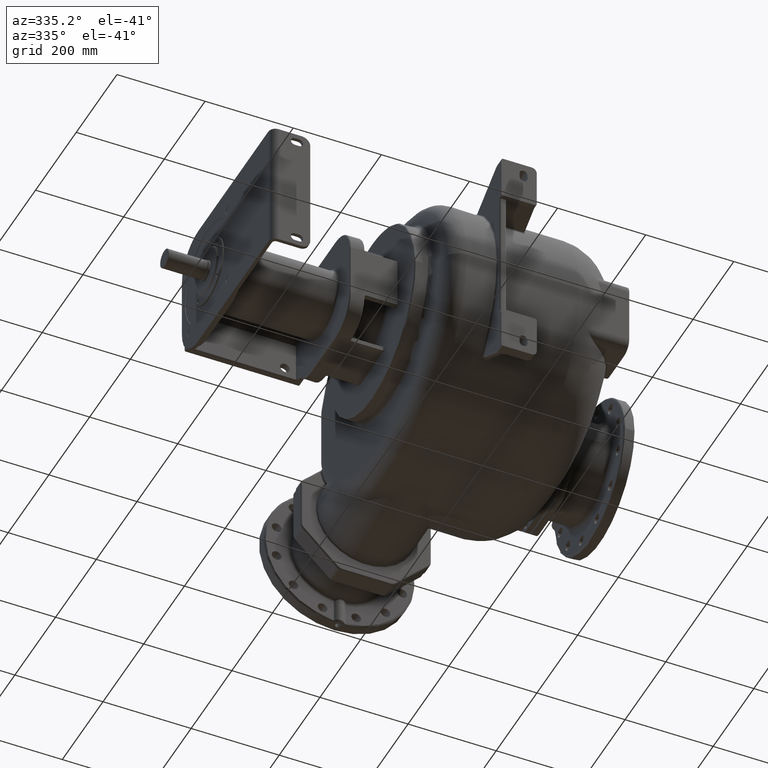
[diagram: clean part render]
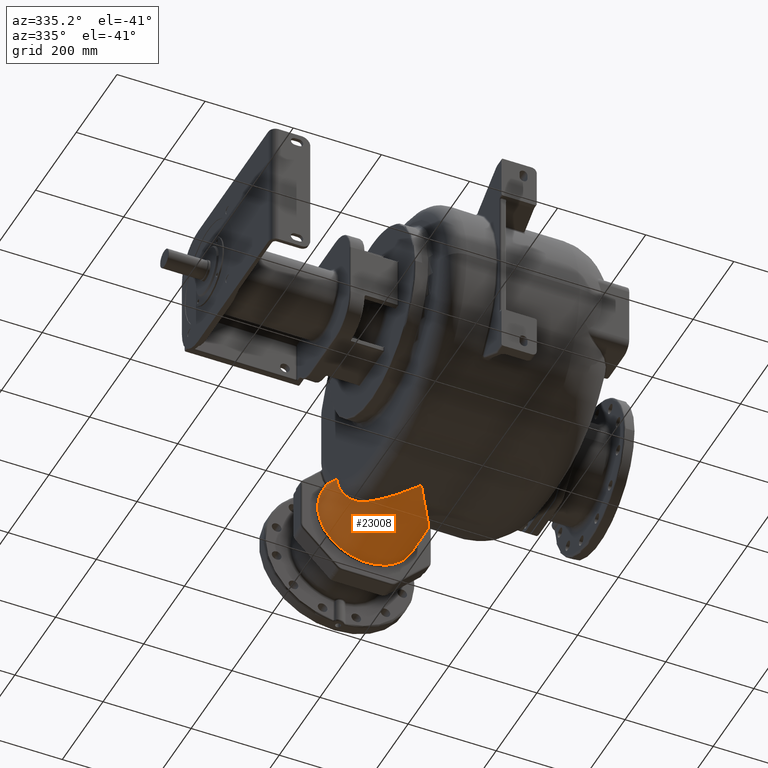
[diagram: same view with one face highlighted and labeled with its STEP entity id]
A machine part, auxiliary view. The second image highlights one B-rep face of the part: STEP entity #23008.
In plain terms, the highlighted cylindrical surface (partial cylindrical patch) has radius 112 mm, axis along (0, 1, 0).
Its self-contained STEP definition (entity closure, byte-faithful):
#1642=CARTESIAN_POINT('',(4.935057520458E1,6.61E2,-1.632944567138E2));
#1643=CARTESIAN_POINT('',(4.964078718439E1,6.607286686041E2,-1.638520622221E2));
#1644=CARTESIAN_POINT('',(5.021158725386E1,6.601758555522E2,-1.649717595625E2));
#1645=CARTESIAN_POINT('',(5.104181989323E1,6.593294968364E2,-1.666704753374E2));
#1646=CARTESIAN_POINT('',(5.184301665347E1,6.584601784242E2,-1.683824999807E2));
#1647=CARTESIAN_POINT('',(5.261586363570E1,6.575688050053E2,-1.701092595525E2));
#1648=CARTESIAN_POINT('',(5.336002347568E1,6.566544842163E2,-1.718502419336E2));
#1649=CARTESIAN_POINT('',(5.407543470834E1,6.557168774528E2,-1.736055199087E2));
#1650=CARTESIAN_POINT('',(5.476192820059E1,6.547554741740E2,-1.753749962830E2));
#1651=CARTESIAN_POINT('',(5.541932794222E1,6.537697745949E2,-1.771585983188E2));
#1652=CARTESIAN_POINT('',(5.604736776078E1,6.527593382165E2,-1.789560513063E2));
#1653=CARTESIAN_POINT('',(5.664577036397E1,6.517237074255E2,-1.807670566131E2));
#1654=CARTESIAN_POINT('',(5.721424199455E1,6.506624175837E2,-1.825912750970E2));
#1655=CARTESIAN_POINT('',(5.775249383543E1,6.495749402063E2,-1.844283761303E2));
#1656=CARTESIAN_POINT('',(5.826037742679E1,6.484605682164E2,-1.862785670101E2));
#1657=CARTESIAN_POINT('',(5.873768384008E1,6.473186342219E2,-1.881419848206E2));
#1658=CARTESIAN_POINT('',(5.918418620543E1,6.461483565379E2,-1.900188486046E2));
#1659=CARTESIAN_POINT('',(5.959949891438E1,6.449492385515E2,-1.919088425010E2));
#1660=CARTESIAN_POINT('',(5.998308437911E1,6.437212516699E2,-1.938108737614E2));
#1661=CARTESIAN_POINT('',(6.033444932574E1,6.424644190531E2,-1.957237665022E2));
#1662=CARTESIAN_POINT('',(6.065332135171E1,6.411780715725E2,-1.976473805639E2));
#1663=CARTESIAN_POINT('',(6.093948227913E1,6.398610678233E2,-1.995821335885E2));
#1664=CARTESIAN_POINT('',(6.119264849618E1,6.385123896198E2,-2.015284112187E2));
#1665=CARTESIAN_POINT('',(6.141245087450E1,6.371312347161E2,-2.034863164377E2));
#1666=CARTESIAN_POINT('',(6.159848204237E1,6.357167317991E2,-2.054559407792E2));
#1667=CARTESIAN_POINT('',(6.175026687455E1,6.342682331677E2,-2.074369912077E2));
#1668=CARTESIAN_POINT('',(6.186728036027E1,6.327856442907E2,-2.094283745584E2));
#1669=CARTESIAN_POINT('',(6.194904578153E1,6.312688927124E2,-2.114289619157E2));
#1670=CARTESIAN_POINT('',(6.199514326388E1,6.297175144633E2,-2.134381220175E2));
#1671=CARTESIAN_POINT('',(6.200515654861E1,6.281303887401E2,-2.154559847977E2));
#1672=CARTESIAN_POINT('',(6.197862595278E1,6.265064967756E2,-2.174824853941E2));
#1673=CARTESIAN_POINT('',(6.191505179923E1,6.248448187831E2,-2.195177489544E2));
#1674=CARTESIAN_POINT('',(6.181389206398E1,6.231443387611E2,-2.215617876074E2));
#1675=CARTESIAN_POINT('',(6.167455866333E1,6.214039715209E2,-2.236146154708E2));
#1676=CARTESIAN_POINT('',(6.149650361709E1,6.196233318296E2,-2.256753526190E2));
#1677=CARTESIAN_POINT('',(6.127921545086E1,6.178021156488E2,-2.277430034803E2));
#1678=CARTESIAN_POINT('',(6.102222044535E1,6.159400533258E2,-2.298165104576E2));
#1679=CARTESIAN_POINT('',(6.072499850670E1,6.140363847263E2,-2.318953292097E2));
#1680=CARTESIAN_POINT('',(6.038702219886E1,6.120902875612E2,-2.339788863687E2));
#1681=CARTESIAN_POINT('',(6.000775603086E1,6.101009484499E2,-2.360666233304E2));
#1682=CARTESIAN_POINT('',(5.958655561381E1,6.080672276408E2,-2.381584391727E2));
#1683=CARTESIAN_POINT('',(5.912273964587E1,6.059879451296E2,-2.402541633173E2));
#1684=CARTESIAN_POINT('',(5.861562981006E1,6.038620622332E2,-2.423534104538E2));
#1685=CARTESIAN_POINT('',(5.806468643337E1,6.016891240657E2,-2.444551632940E2));
#1686=CARTESIAN_POINT('',(5.746938108018E1,5.994686262313E2,-2.465584270081E2));
#1687=CARTESIAN_POINT('',(5.682921431766E1,5.972000861780E2,-2.486621503529E2));
#1688=CARTESIAN_POINT('',(5.614367671453E1,5.948829043330E2,-2.507653557678E2));
#1689=CARTESIAN_POINT('',(5.541230196432E1,5.925165247888E2,-2.528669621211E2));
#1690=CARTESIAN_POINT('',(5.463460784206E1,5.901003178978E2,-2.549659745294E2));
#1691=CARTESIAN_POINT('',(5.380997333485E1,5.876333583220E2,-2.570617484139E2));
#1692=CARTESIAN_POINT('',(5.293778823977E1,5.851147553162E2,-2.591535354279E2));
#1693=CARTESIAN_POINT('',(5.201747018584E1,5.825437084714E2,-2.612404686939E2));
#1694=CARTESIAN_POINT('',(5.104850636703E1,5.799195883678E2,-2.633214983286E2));
#1695=CARTESIAN_POINT('',(5.003038753722E1,5.772417349015E2,-2.653955603784E2));
#1696=CARTESIAN_POINT('',(4.896267431590E1,5.745096202224E2,-2.674614456278E2));
#1697=CARTESIAN_POINT('',(4.784501996833E1,5.717228807068E2,-2.695177912364E2));
#1698=CARTESIAN_POINT('',(4.667711583045E1,5.688811364310E2,-2.715632044445E2));
#1699=CARTESIAN_POINT('',(4.545870201101E1,5.659840913956E2,-2.735962498599E2));
#1700=CARTESIAN_POINT('',(4.418948965436E1,5.630314479023E2,-2.756155754532E2));
#1701=CARTESIAN_POINT('',(4.286923922846E1,5.600229551403E2,-2.776197756756E2));
#1702=CARTESIAN_POINT('',(4.149765346600E1,5.569581876808E2,-2.796075518525E2));
#1703=CARTESIAN_POINT('',(4.007445426119E1,5.538367189866E2,-2.815775781250E2));
#1704=CARTESIAN_POINT('',(3.859939859196E1,5.506581465400E2,-2.835284842943E2));
#1705=CARTESIAN_POINT('',(3.707229876814E1,5.474221310080E2,-2.854588303744E2));
#1706=CARTESIAN_POINT('',(3.549325907184E1,5.441288500321E2,-2.873668412303E2));
#1707=CARTESIAN_POINT('',(3.386239420228E1,5.407784499056E2,-2.892507977243E2));
#1708=CARTESIAN_POINT('',(3.217978455644E1,5.373710341539E2,-2.911090681727E2));
#1709=CARTESIAN_POINT('',(3.044558600757E1,5.339067841620E2,-2.929399770615E2));
#1710=CARTESIAN_POINT('',(2.866002177581E1,5.303859524449E2,-2.947418232636E2));
#1711=CARTESIAN_POINT('',(2.682335453980E1,5.268087932479E2,-2.965129109193E2));
#1712=CARTESIAN_POINT('',(2.493595486890E1,5.231756908985E2,-2.982514857551E2));
#1713=CARTESIAN_POINT('',(2.299833424303E1,5.194871962750E2,-2.999557237760E2));
#1714=CARTESIAN_POINT('',(2.101094089280E1,5.157437628158E2,-3.016239147559E2));
#1715=CARTESIAN_POINT('',(1.897437496703E1,5.119460756476E2,-3.032542693909E2));
#1716=CARTESIAN_POINT('',(1.688939096630E1,5.080950283855E2,-3.048449418258E2));
#1717=CARTESIAN_POINT('',(1.475678030340E1,5.041915023354E2,-3.063941294481E2));
#1718=CARTESIAN_POINT('',(1.257743915412E1,5.002364650392E2,-3.079000243462E2));
#1719=CARTESIAN_POINT('',(1.035224954407E1,4.962308371759E2,-3.093608976342E2));
#1720=CARTESIAN_POINT('',(8.082213228995E0,4.921757332480E2,-3.107750054449E2));
#1721=CARTESIAN_POINT('',(5.768450262973E0,4.880723968566E2,-3.121406026928E2));
#1722=CARTESIAN_POINT('',(3.412254559175E0,4.839223008289E2,-3.134559206415E2));
#1723=CARTESIAN_POINT('',(1.015247049936E0,4.797274013084E2,-3.147191111608E2));
#1724=CARTESIAN_POINT('',(-1.421069396101E0,4.754894403538E2,
-3.159285035510E2));
#1725=CARTESIAN_POINT('',(-3.895357421122E0,4.712098047108E2,
-3.170825920467E2));
#1726=CARTESIAN_POINT('',(-6.406183468927E0,4.668899806766E2,
-3.181798950880E2));
#1727=CARTESIAN_POINT('',(-8.952119387962E0,4.625313812707E2,
-3.192190028576E2));
#1728=CARTESIAN_POINT('',(-1.153150644046E1,4.581358160524E2,
-3.201984816788E2));
#1729=CARTESIAN_POINT('',(-1.414241406122E1,4.537054939547E2,
-3.211168904397E2));
#1730=CARTESIAN_POINT('',(-1.678290558198E1,4.492425602730E2,
-3.219728934133E2));
#1731=CARTESIAN_POINT('',(-1.945100360962E1,4.447492041912E2,
-3.227652423772E2));
#1732=CARTESIAN_POINT('',(-2.214466016660E1,4.402277032795E2,
-3.234927693979E2));
#1733=CARTESIAN_POINT('',(-2.486179042777E1,4.356803345683E2,
-3.241543985122E2));
#1734=CARTESIAN_POINT('',(-2.760026029978E1,4.311094336504E2,
-3.247491420369E2));
#1735=CARTESIAN_POINT('',(-3.035782202183E1,4.265175029988E2,
-3.252760917714E2));
#1736=CARTESIAN_POINT('',(-3.313221016763E1,4.219070267816E2,
-3.257344443668E2));
#1737=CARTESIAN_POINT('',(-3.592111554651E1,4.172805502029E2,
-3.261234955507E2));
#1738=CARTESIAN_POINT('',(-3.872218924079E1,4.126406580560E2,
-3.264426438236E2));
#1739=CARTESIAN_POINT('',(-4.153306013078E1,4.079899502629E2,
-3.266913920811E2));
#1740=CARTESIAN_POINT('',(-4.435123402432E1,4.033312211393E2,
-3.268693471009E2));
#1741=CARTESIAN_POINT('',(-4.717438870619E1,3.986669629178E2,
-3.269762333127E2));
#1742=CARTESIAN_POINT('',(-4.905794385153E1,3.955559611368E2,
-3.269999986423E2));
#1743=CARTESIAN_POINT('',(-5.E1,3.94E2,-3.27E2));
#1745=CARTESIAN_POINT('',(-1.62E2,5.670895721874E2,-2.15E2));
#1746=CARTESIAN_POINT('',(-1.620000024725E2,5.684595082387E2,
-2.143182103054E2));
#1747=CARTESIAN_POINT('',(-1.619875440128E2,5.711653601307E2,
-2.129527960979E2));
#1748=CARTESIAN_POINT('',(-1.619312680864E2,5.751232007292E2,
-2.109016842099E2));
#1749=CARTESIAN_POINT('',(-1.618373293461E2,5.789805304843E2,
-2.088504198040E2));
#1750=CARTESIAN_POINT('',(-1.617058257796E2,5.827379597330E2,
-2.068017057906E2));
#1751=CARTESIAN_POINT('',(-1.615370141196E2,5.863957902337E2,
-2.047582623928E2));
#1752=CARTESIAN_POINT('',(-1.613313081836E2,5.899544017247E2,
-2.027227439283E2));
#1753=CARTESIAN_POINT('',(-1.610892664279E2,5.934143827202E2,
-2.006976838557E2));
#1754=CARTESIAN_POINT('',(-1.608115452886E2,5.967766811813E2,
-1.986852518479E2));
#1755=CARTESIAN_POINT('',(-1.604989093680E2,6.000422205573E2,
-1.966875236081E2));
#1756=CARTESIAN_POINT('',(-1.601522425704E2,6.032119138942E2,
-1.947065617791E2));
#1757=CARTESIAN_POINT('',(-1.597724710559E2,6.062873016084E2,
-1.927440342425E2));
#1758=CARTESIAN_POINT('',(-1.593605369409E2,6.092701319918E2,
-1.908012673015E2));
#1759=CARTESIAN_POINT('',(-1.589174301393E2,6.121620216659E2,
-1.888795001630E2));
#1760=CARTESIAN_POINT('',(-1.584441829185E2,6.149646841726E2,
-1.869798841789E2));
#1761=CARTESIAN_POINT('',(-1.579418623816E2,6.176799182721E2,
-1.851034794400E2));
#1762=CARTESIAN_POINT('',(-1.574115568130E2,6.203095386913E2,
-1.832512295341E2));
#1763=CARTESIAN_POINT('',(-1.568543522853E2,6.228551943531E2,
-1.814239173590E2));
#1764=CARTESIAN_POINT('',(-1.562713507969E2,6.253186346433E2,
-1.796222596430E2));
#1765=CARTESIAN_POINT('',(-1.556636742041E2,6.277016180265E2,
-1.778469289532E2));
#1766=CARTESIAN_POINT('',(-1.550324557900E2,6.300059685259E2,
-1.760985353329E2));
#1767=CARTESIAN_POINT('',(-1.543787971889E2,6.322333185281E2,
-1.743775269045E2));
#1768=CARTESIAN_POINT('',(-1.537037931460E2,6.343853630880E2,
-1.726842853641E2));
#1769=CARTESIAN_POINT('',(-1.530085572331E2,6.364637761890E2,
-1.710191948913E2));
#1770=CARTESIAN_POINT('',(-1.522942003680E2,6.384703179333E2,
-1.693825877568E2));
#1771=CARTESIAN_POINT('',(-1.515617861637E2,6.404065733267E2,
-1.677746565298E2));
#1772=CARTESIAN_POINT('',(-1.508123600528E2,6.422741396411E2,
-1.661955394412E2));
#1773=CARTESIAN_POINT('',(-1.500469683663E2,6.440746364317E2,
-1.646453642405E2));
#1774=CARTESIAN_POINT('',(-1.492666372907E2,6.458097752495E2,
-1.631242055033E2));
#1775=CARTESIAN_POINT('',(-1.484723258682E2,6.474811187949E2,
-1.616320064219E2));
#1776=CARTESIAN_POINT('',(-1.476650039189E2,6.490901387022E2,
-1.601687386954E2));
#1777=CARTESIAN_POINT('',(-1.468456624261E2,6.506382946334E2,
-1.587344109066E2));
#1778=CARTESIAN_POINT('',(-1.460152558698E2,6.521271497548E2,
-1.573289642986E2));
#1779=CARTESIAN_POINT('',(-1.451746838097E2,6.535580985149E2,
-1.559522529094E2));
#1780=CARTESIAN_POINT('',(-1.443248255449E2,6.549325259424E2,
-1.546041097204E2));
#1781=CARTESIAN_POINT('',(-1.434665308946E2,6.562519036486E2,
-1.532843317498E2));
#1782=CARTESIAN_POINT('',(-1.426005784452E2,6.575177128127E2,
-1.519926282995E2));
#1783=CARTESIAN_POINT('',(-1.417277900712E2,6.587314331845E2,
-1.507287804621E2));
#1784=CARTESIAN_POINT('',(-1.408485507292E2,6.598939650343E2,
-1.494920011664E2));
#1785=CARTESIAN_POINT('',(-1.402592909472E2,6.606370476933E2,
-1.486862969938E2));
#1786=CARTESIAN_POINT('',(-1.399637734645E2,6.61E2,-1.482877862455E2));
#1788=CARTESIAN_POINT('',(-1.175862068965E2,5.093840707694E2,
-3.043090400650E2));
#1789=CARTESIAN_POINT('',(-1.179140322442E2,5.099886647183E2,
-3.040609514085E2));
#1790=CARTESIAN_POINT('',(-1.185713211021E2,5.111842072955E2,
-3.035578587305E2));
#1791=CARTESIAN_POINT('',(-1.195609722050E2,5.129368989869E2,
-3.027827107078E2));
#1792=CARTESIAN_POINT('',(-1.205537034113E2,5.146501184249E2,
-3.019869008568E2));
#1793=CARTESIAN_POINT('',(-1.215488235124E2,5.163247692755E2,
-3.011703230633E2));
#1794=CARTESIAN_POINT('',(-1.225457673847E2,5.179617902177E2,
-3.003327787228E2));
#1795=CARTESIAN_POINT('',(-1.235439016166E2,5.195620334627E2,
-2.994741303847E2));
#1796=CARTESIAN_POINT('',(-1.245425559155E2,5.211264740950E2,
-2.985942827406E2));
#1797=CARTESIAN_POINT('',(-1.255410306082E2,5.226558520904E2,
-2.976931788901E2));
#1798=CARTESIAN_POINT('',(-1.265385562991E2,5.241507129465E2,
-2.967708426962E2));
#1799=CARTESIAN_POINT('',(-1.275344818356E2,5.256116793252E2,
-2.958272090417E2));
#1800=CARTESIAN_POINT('',(-1.285284245521E2,5.270396968832E2,
-2.948619602987E2));
#1801=CARTESIAN_POINT('',(-1.295199408698E2,5.284358623820E2,
-2.938748238476E2));
#1802=CARTESIAN_POINT('',(-1.305083532432E2,5.298007963792E2,
-2.928657575324E2));
#1803=CARTESIAN_POINT('',(-1.314926189916E2,5.311345455515E2,
-2.918351205502E2));
#1804=CARTESIAN_POINT('',(-1.324717300781E2,5.324371583389E2,
-2.907832943912E2));
#1805=CARTESIAN_POINT('',(-1.334451992718E2,5.337093221243E2,
-2.897101356088E2));
#1806=CARTESIAN_POINT('',(-1.344128182121E2,5.349519676608E2,
-2.886151752401E2));
#1807=CARTESIAN_POINT('',(-1.353743003605E2,5.361661631388E2,
-2.874979948225E2));
#1808=CARTESIAN_POINT('',(-1.363289780496E2,5.373524317417E2,
-2.863586018595E2));
#1809=CARTESIAN_POINT('',(-1.372758523605E2,5.385108176036E2,
-2.851974327099E2));
#1810=CARTESIAN_POINT('',(-1.382139975463E2,5.396414176444E2,
-2.840148938970E2));
#1811=CARTESIAN_POINT('',(-1.391426731452E2,5.407445037183E2,
-2.828112071453E2));
#1812=CARTESIAN_POINT('',(-1.400615116167E2,5.418207391771E2,
-2.815861211533E2));
#1813=CARTESIAN_POINT('',(-1.409700981691E2,5.428706305558E2,
-2.803394246650E2));
#1814=CARTESIAN_POINT('',(-1.418680119231E2,5.438948720517E2,
-2.790708933798E2));
#1815=CARTESIAN_POINT('',(-1.427544818087E2,5.448937657161E2,
-2.777807968608E2));
#1816=CARTESIAN_POINT('',(-1.436286764769E2,5.458674888375E2,
-2.764695391152E2));
#1817=CARTESIAN_POINT('',(-1.444898065120E2,5.468162321650E2,
-2.751375114167E2));
#1818=CARTESIAN_POINT('',(-1.453371276534E2,5.477401956610E2,
-2.737850855830E2));
#1819=CARTESIAN_POINT('',(-1.461701014909E2,5.486397693006E2,
-2.724123347054E2));
#1820=CARTESIAN_POINT('',(-1.469881522143E2,5.495152363600E2,
-2.710194019909E2));
#1821=CARTESIAN_POINT('',(-1.477908607234E2,5.503671133842E2,
-2.696061682914E2));
#1822=CARTESIAN_POINT('',(-1.485779840474E2,5.511961822211E2,
-2.681721651985E2));
#1823=CARTESIAN_POINT('',(-1.493493187943E2,5.520031958098E2,
-2.667167613394E2));
#1824=CARTESIAN_POINT('',(-1.501040896814E2,5.527882815077E2,
-2.652403566217E2));
#1825=CARTESIAN_POINT('',(-1.508412689044E2,5.535512811836E2,
-2.637439346318E2));
#1826=CARTESIAN_POINT('',(-1.515599093896E2,5.542921046985E2,
-2.622284616162E2));
#1827=CARTESIAN_POINT('',(-1.522595394149E2,5.550111126766E2,
-2.606939808843E2));
#1828=CARTESIAN_POINT('',(-1.529397169500E2,5.557087735111E2,
-2.591404444634E2));
#1829=CARTESIAN_POINT('',(-1.535999892737E2,5.563855453486E2,
-2.575677982180E2));
#1830=CARTESIAN_POINT('',(-1.542397658046E2,5.570417172876E2,
-2.559763027799E2));
#1831=CARTESIAN_POINT('',(-1.548584372007E2,5.576775402677E2,
-2.543662950587E2));
#1832=CARTESIAN_POINT('',(-1.554554114443E2,5.582932632783E2,
-2.527380978231E2));
#1833=CARTESIAN_POINT('',(-1.560300878011E2,5.588891035933E2,
-2.510920903195E2));
#1834=CARTESIAN_POINT('',(-1.565818701075E2,5.594653368717E2,
-2.494286795854E2));
#1835=CARTESIAN_POINT('',(-1.571101667962E2,5.600222302937E2,
-2.477483071293E2));
#1836=CARTESIAN_POINT('',(-1.576144421759E2,5.605600924412E2,
-2.460512773955E2));
#1837=CARTESIAN_POINT('',(-1.580941786698E2,5.610792390451E2,
-2.443378453647E2));
#1838=CARTESIAN_POINT('',(-1.585488525648E2,5.615799601755E2,
-2.426082958661E2));
#1839=CARTESIAN_POINT('',(-1.589779514918E2,5.620625901505E2,
-2.408628771034E2));
#1840=CARTESIAN_POINT('',(-1.593809640895E2,5.625274690015E2,
-2.391018292763E2));
#1841=CARTESIAN_POINT('',(-1.597573808806E2,5.629749308496E2,
-2.373253700631E2));
#1842=CARTESIAN_POINT('',(-1.601066520538E2,5.634052560119E2,
-2.355339025013E2));
#1843=CARTESIAN_POINT('',(-1.604281952769E2,5.638186753554E2,
-2.337280691944E2));
#1844=CARTESIAN_POINT('',(-1.607214554483E2,5.642154670708E2,
-2.319084864906E2));
#1845=CARTESIAN_POINT('',(-1.609859022008E2,5.645959244471E2,
-2.300757354914E2));
#1846=CARTESIAN_POINT('',(-1.612210367538E2,5.649603740396E2,
-2.282302681646E2));
#1847=CARTESIAN_POINT('',(-1.614263627382E2,5.653091379241E2,
-2.263725725510E2));
#1848=CARTESIAN_POINT('',(-1.616013881333E2,5.656425595336E2,
-2.245031854835E2));
#1849=CARTESIAN_POINT('',(-1.617456273276E2,5.659609761421E2,
-2.226227064172E2));
#1850=CARTESIAN_POINT('',(-1.618586083487E2,5.662647255999E2,
-2.207317630550E2));
#1851=CARTESIAN_POINT('',(-1.619398749401E2,5.665541662795E2,
-2.188309329837E2));
#1852=CARTESIAN_POINT('',(-1.619889913131E2,5.668297027322E2,
-2.169206666970E2));
#1853=CARTESIAN_POINT('',(-1.619999941655E2,5.670044030525E2,
-2.156411483800E2));
#1854=CARTESIAN_POINT('',(-1.62E2,5.670895725054E2,-2.149999996754E2));
#1856=CARTESIAN_POINT('',(-5.000000000543E1,3.94E2,-3.27E2));
#1857=CARTESIAN_POINT('',(-5.091875961337E1,3.955174807095E2,
-3.269999836146E2));
#1858=CARTESIAN_POINT('',(-5.275579128017E1,3.985516321229E2,
-3.269774013369E2));
#1859=CARTESIAN_POINT('',(-5.550944386334E1,4.031009979041E2,
-3.268757146949E2));
#1860=CARTESIAN_POINT('',(-5.825845480806E1,4.076452077702E2,
-3.267064232078E2));
#1861=CARTESIAN_POINT('',(-6.100070802664E1,4.121820052296E2,
-3.264697608521E2));
#1862=CARTESIAN_POINT('',(-6.373393246318E1,4.167088616455E2,
-3.261660799386E2));
#1863=CARTESIAN_POINT('',(-6.645591325383E1,4.212233502957E2,
-3.257958261113E2));
#1864=CARTESIAN_POINT('',(-6.916442290737E1,4.257230038501E2,
-3.253595482027E2));
#1865=CARTESIAN_POINT('',(-7.185730646381E1,4.302054437875E2,
-3.248578852300E2));
#1866=CARTESIAN_POINT('',(-7.453247280011E1,4.346683656296E2,
-3.242915614179E2));
#1867=CARTESIAN_POINT('',(-7.718787384890E1,4.391095396986E2,
-3.236613869535E2));
#1868=CARTESIAN_POINT('',(-7.982152288072E1,4.435267998167E2,
-3.229682510624E2));
#1869=CARTESIAN_POINT('',(-8.243146684984E1,4.479179879364E2,
-3.222131262152E2));
#1870=CARTESIAN_POINT('',(-8.501576980633E1,4.522809570995E2,
-3.213970740049E2));
#1871=CARTESIAN_POINT('',(-8.757251356751E1,4.566135653281E2,
-3.205212473088E2));
#1872=CARTESIAN_POINT('',(-9.009982850597E1,4.609136826445E2,
-3.195868838611E2));
#1873=CARTESIAN_POINT('',(-9.259612436977E1,4.651796214130E2,
-3.185952086353E2));
#1874=CARTESIAN_POINT('',(-9.505983384906E1,4.694097151136E2,
-3.175475126056E2));
#1875=CARTESIAN_POINT('',(-9.748944291033E1,4.736023127945E2,
-3.164451424936E2));
#1876=CARTESIAN_POINT('',(-9.988337602762E1,4.777556279900E2,
-3.152895566074E2));
#1877=CARTESIAN_POINT('',(-1.022400908728E2,4.818678874902E2,
-3.140822916592E2));
#1878=CARTESIAN_POINT('',(-1.045581131418E2,4.859373502698E2,
-3.128249483924E2));
#1879=CARTESIAN_POINT('',(-1.068363200129E2,4.899628723272E2,
-3.115190204997E2));
#1880=CARTESIAN_POINT('',(-1.090736359123E2,4.939433208416E2,
-3.101660344834E2));
#1881=CARTESIAN_POINT('',(-1.112690268421E2,4.978775947374E2,
-3.087675553860E2));
#1882=CARTESIAN_POINT('',(-1.134214815597E2,5.017645857697E2,
-3.073252025435E2));
#1883=CARTESIAN_POINT('',(-1.155301004021E2,5.056033181202E2,
-3.058405837053E2));
#1884=CARTESIAN_POINT('',(-1.169058529088E2,5.081293144324E2,
-3.048239099083E2));
#1885=CARTESIAN_POINT('',(-1.175862068965E2,5.093840707694E2,
-3.043090400650E2));
#1990=CARTESIAN_POINT('',(-5.E1,3.94E2,-3.27E2));
#2168=CARTESIAN_POINT('',(-1.62E2,5.670895725054E2,-2.149999996754E2));
#7071=CARTESIAN_POINT('',(-5.E1,6.61E2,-2.15E2));
#7072=DIRECTION('',(0.E0,-1.E0,0.E0));
#7073=DIRECTION('',(-8.032479773614E-1,0.E0,5.956447656656E-1));
#7074=AXIS2_PLACEMENT_3D('',#7071,#7072,#7073);
#20521=VERTEX_POINT('',#1990);
#20522=VERTEX_POINT('',#1642);
#20524=VERTEX_POINT('',#2168);
#20525=VERTEX_POINT('',#1788);
#20526=VERTEX_POINT('',#1786);
#22992=CARTESIAN_POINT('',(-5.E1,6.9E2,-2.15E2));
#22993=DIRECTION('',(0.E0,1.E0,0.E0));
#22994=DIRECTION('',(0.E0,0.E0,1.E0));
#22995=AXIS2_PLACEMENT_3D('',#22992,#22993,#22994);
#22996=CYLINDRICAL_SURFACE('',#22995,1.12E2);
#22998=ORIENTED_EDGE('',*,*,#22997,.F.);
#23000=ORIENTED_EDGE('',*,*,#22999,.F.);
#23001=ORIENTED_EDGE('',*,*,#22984,.F.);
#23003=ORIENTED_EDGE('',*,*,#23002,.F.);
#23005=ORIENTED_EDGE('',*,*,#23004,.F.);
#23006=EDGE_LOOP('',(#22998,#23000,#23001,#23003,#23005));
#23007=FACE_OUTER_BOUND('',#23006,.F.);
#23008=ADVANCED_FACE('',(#23007),#22996,.T.);
#1744=B_SPLINE_CURVE_WITH_KNOTS('',3,(#1642,#1643,#1644,#1645,#1646,#1647,#1648,
#1649,#1650,#1651,#1652,#1653,#1654,#1655,#1656,#1657,#1658,#1659,#1660,#1661,
#1662,#1663,#1664,#1665,#1666,#1667,#1668,#1669,#1670,#1671,#1672,#1673,#1674,
#1675,#1676,#1677,#1678,#1679,#1680,#1681,#1682,#1683,#1684,#1685,#1686,#1687,
#1688,#1689,#1690,#1691,#1692,#1693,#1694,#1695,#1696,#1697,#1698,#1699,#1700,
#1701,#1702,#1703,#1704,#1705,#1706,#1707,#1708,#1709,#1710,#1711,#1712,#1713,
#1714,#1715,#1716,#1717,#1718,#1719,#1720,#1721,#1722,#1723,#1724,#1725,#1726,
#1727,#1728,#1729,#1730,#1731,#1732,#1733,#1734,#1735,#1736,#1737,#1738,#1739,
#1740,#1741,#1742,#1743),.UNSPECIFIED.,.F.,.F.,(4,1,1,1,1,1,1,1,1,1,1,1,1,1,1,1,
1,1,1,1,1,1,1,1,1,1,1,1,1,1,1,1,1,1,1,1,1,1,1,1,1,1,1,1,1,1,1,1,1,1,1,1,1,1,1,1,
1,1,1,1,1,1,1,1,1,1,1,1,1,1,1,1,1,1,1,1,1,1,1,1,1,1,1,1,1,1,1,1,1,1,1,1,1,1,1,1,
1,1,1,4),(0.E0,1.010101010101E-2,2.020202020202E-2,3.030303030303E-2,
4.040404040404E-2,5.050505050505E-2,6.060606060606E-2,7.070707070707E-2,
8.080808080808E-2,9.090909090909E-2,1.010101010101E-1,1.111111111111E-1,
1.212121212121E-1,1.313131313131E-1,1.414141414141E-1,1.515151515152E-1,
1.616161616162E-1,1.717171717172E-1,1.818181818182E-1,1.919191919192E-1,
2.020202020202E-1,2.121212121212E-1,2.222222222222E-1,2.323232323232E-1,
2.424242424242E-1,2.525252525253E-1,2.626262626263E-1,2.727272727273E-1,
2.828282828283E-1,2.929292929293E-1,3.030303030303E-1,3.131313131313E-1,
3.232323232323E-1,3.333333333333E-1,3.434343434343E-1,3.535353535354E-1,
3.636363636364E-1,3.737373737374E-1,3.838383838384E-1,3.939393939394E-1,
4.040404040404E-1,4.141414141414E-1,4.242424242424E-1,4.343434343434E-1,
4.444444444444E-1,4.545454545455E-1,4.646464646465E-1,4.747474747475E-1,
4.848484848485E-1,4.949494949495E-1,5.050505050505E-1,5.151515151515E-1,
5.252525252525E-1,5.353535353535E-1,5.454545454545E-1,5.555555555556E-1,
5.656565656566E-1,5.757575757576E-1,5.858585858586E-1,5.959595959596E-1,
6.060606060606E-1,6.161616161616E-1,6.262626262626E-1,6.363636363636E-1,
6.464646464646E-1,6.565656565657E-1,6.666666666667E-1,6.767676767677E-1,
6.868686868687E-1,6.969696969697E-1,7.070707070707E-1,7.171717171717E-1,
7.272727272727E-1,7.373737373737E-1,7.474747474747E-1,7.575757575758E-1,
7.676767676768E-1,7.777777777778E-1,7.878787878788E-1,7.979797979798E-1,
8.080808080808E-1,8.181818181818E-1,8.282828282828E-1,8.383838383838E-1,
8.484848484848E-1,8.585858585859E-1,8.686868686869E-1,8.787878787879E-1,
8.888888888889E-1,8.989898989899E-1,9.090909090909E-1,9.191919191919E-1,
9.292929292929E-1,9.393939393939E-1,9.494949494949E-1,9.595959595960E-1,
9.696969696970E-1,9.797979797980E-1,9.898989898990E-1,1.E0),.UNSPECIFIED.);
#1787=B_SPLINE_CURVE_WITH_KNOTS('',3,(#1745,#1746,#1747,#1748,#1749,#1750,#1751,
#1752,#1753,#1754,#1755,#1756,#1757,#1758,#1759,#1760,#1761,#1762,#1763,#1764,
#1765,#1766,#1767,#1768,#1769,#1770,#1771,#1772,#1773,#1774,#1775,#1776,#1777,
#1778,#1779,#1780,#1781,#1782,#1783,#1784,#1785,#1786),.UNSPECIFIED.,.F.,.F.,(4,
1,1,1,1,1,1,1,1,1,1,1,1,1,1,1,1,1,1,1,1,1,1,1,1,1,1,1,1,1,1,1,1,1,1,1,1,1,1,4),(
0.E0,2.564102564103E-2,5.128205128205E-2,7.692307692308E-2,1.025641025641E-1,
1.282051282051E-1,1.538461538462E-1,1.794871794872E-1,2.051282051282E-1,
2.307692307692E-1,2.564102564103E-1,2.820512820513E-1,3.076923076923E-1,
3.333333333333E-1,3.589743589744E-1,3.846153846154E-1,4.102564102564E-1,
4.358974358974E-1,4.615384615385E-1,4.871794871795E-1,5.128205128205E-1,
5.384615384615E-1,5.641025641026E-1,5.897435897436E-1,6.153846153846E-1,
6.410256410256E-1,6.666666666667E-1,6.923076923077E-1,7.179487179487E-1,
7.435897435897E-1,7.692307692308E-1,7.948717948718E-1,8.205128205128E-1,
8.461538461538E-1,8.717948717949E-1,8.974358974359E-1,9.230769230769E-1,
9.487179487179E-1,9.743589743590E-1,1.E0),.UNSPECIFIED.);
#1855=B_SPLINE_CURVE_WITH_KNOTS('',3,(#1788,#1789,#1790,#1791,#1792,#1793,#1794,
#1795,#1796,#1797,#1798,#1799,#1800,#1801,#1802,#1803,#1804,#1805,#1806,#1807,
#1808,#1809,#1810,#1811,#1812,#1813,#1814,#1815,#1816,#1817,#1818,#1819,#1820,
#1821,#1822,#1823,#1824,#1825,#1826,#1827,#1828,#1829,#1830,#1831,#1832,#1833,
#1834,#1835,#1836,#1837,#1838,#1839,#1840,#1841,#1842,#1843,#1844,#1845,#1846,
#1847,#1848,#1849,#1850,#1851,#1852,#1853,#1854),.UNSPECIFIED.,.F.,.F.,(4,1,1,1,
1,1,1,1,1,1,1,1,1,1,1,1,1,1,1,1,1,1,1,1,1,1,1,1,1,1,1,1,1,1,1,1,1,1,1,1,1,1,1,1,
1,1,1,1,1,1,1,1,1,1,1,1,1,1,1,1,1,1,1,1,4),(0.E0,1.5625E-2,3.125E-2,4.6875E-2,
6.25E-2,7.8125E-2,9.375E-2,1.09375E-1,1.25E-1,1.40625E-1,1.5625E-1,1.71875E-1,
1.875E-1,2.03125E-1,2.1875E-1,2.34375E-1,2.5E-1,2.65625E-1,2.8125E-1,2.96875E-1,
3.125E-1,3.28125E-1,3.4375E-1,3.59375E-1,3.75E-1,3.90625E-1,4.0625E-1,
4.21875E-1,4.375E-1,4.53125E-1,4.6875E-1,4.84375E-1,5.E-1,5.15625E-1,5.3125E-1,
5.46875E-1,5.625E-1,5.78125E-1,5.9375E-1,6.09375E-1,6.25E-1,6.40625E-1,
6.5625E-1,6.71875E-1,6.875E-1,7.03125E-1,7.1875E-1,7.34375E-1,7.5E-1,7.65625E-1,
7.8125E-1,7.96875E-1,8.125E-1,8.28125E-1,8.4375E-1,8.59375E-1,8.75E-1,
8.90625E-1,9.0625E-1,9.21875E-1,9.375E-1,9.53125E-1,9.6875E-1,9.84375E-1,1.E0),
.UNSPECIFIED.);
#1886=B_SPLINE_CURVE_WITH_KNOTS('',3,(#1856,#1857,#1858,#1859,#1860,#1861,#1862,
#1863,#1864,#1865,#1866,#1867,#1868,#1869,#1870,#1871,#1872,#1873,#1874,#1875,
#1876,#1877,#1878,#1879,#1880,#1881,#1882,#1883,#1884,#1885),.UNSPECIFIED.,.F.,
.F.,(4,1,1,1,1,1,1,1,1,1,1,1,1,1,1,1,1,1,1,1,1,1,1,1,1,1,1,4),(0.E0,
3.703703703704E-2,7.407407407407E-2,1.111111111111E-1,1.481481481481E-1,
1.851851851852E-1,2.222222222222E-1,2.592592592593E-1,2.962962962963E-1,
3.333333333333E-1,3.703703703704E-1,4.074074074074E-1,4.444444444444E-1,
4.814814814815E-1,5.185185185185E-1,5.555555555556E-1,5.925925925926E-1,
6.296296296296E-1,6.666666666667E-1,7.037037037037E-1,7.407407407407E-1,
7.777777777778E-1,8.148148148148E-1,8.518518518519E-1,8.888888888889E-1,
9.259259259259E-1,9.629629629630E-1,1.E0),.UNSPECIFIED.);
#7075=CIRCLE('',#7074,1.12E2);
#22984=EDGE_CURVE('',#20524,#20526,#1787,.T.);
#22997=EDGE_CURVE('',#20522,#20521,#1744,.T.);
#22999=EDGE_CURVE('',#20526,#20522,#7075,.T.);
#23002=EDGE_CURVE('',#20525,#20524,#1855,.T.);
#23004=EDGE_CURVE('',#20521,#20525,#1886,.T.);